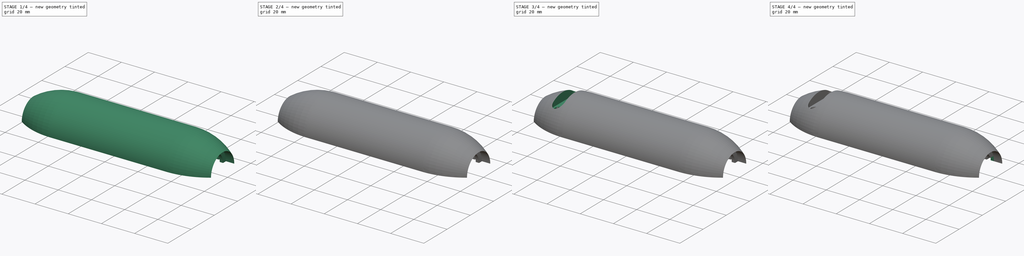
[diagram: build sequence overview — one tinted view per stage of 4, left to right]
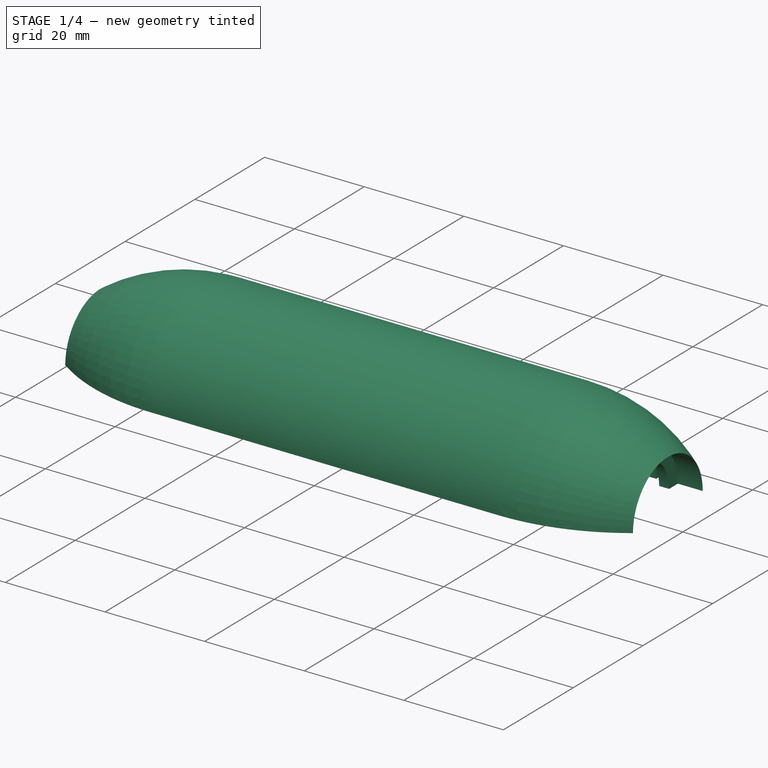
[diagram: stage 1 of 4 — iso view after this stage's code; geometry added in this stage tinted green]
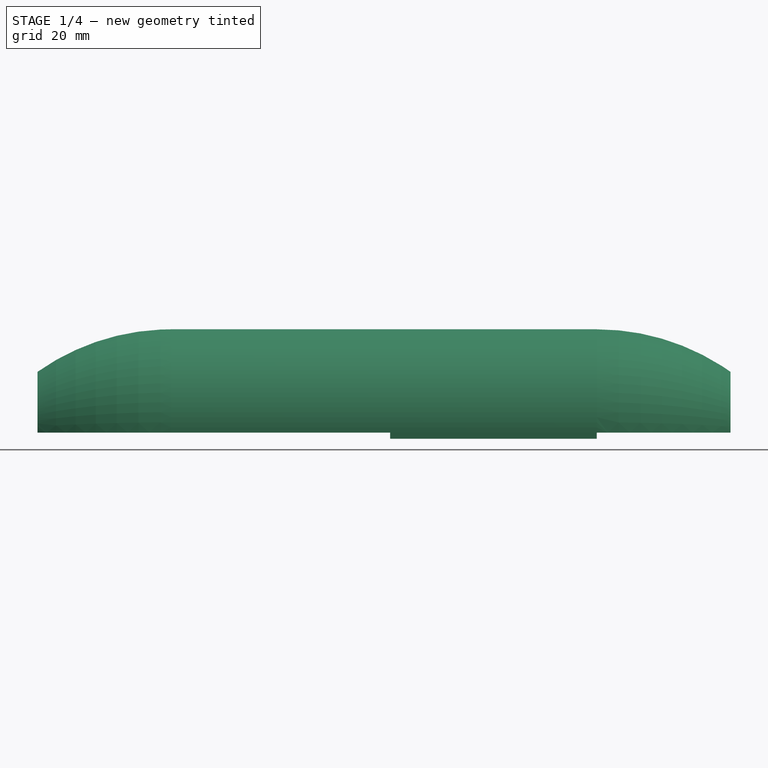
[diagram: stage 1 of 4 — front view after this stage's code; geometry added in this stage tinted green]
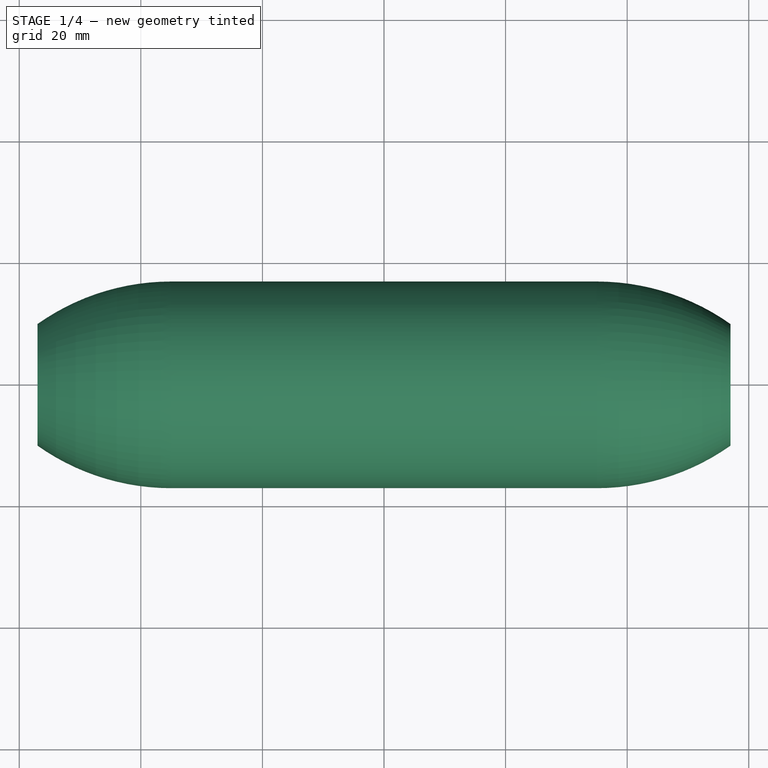
[diagram: stage 1 of 4 — top view after this stage's code; geometry added in this stage tinted green]
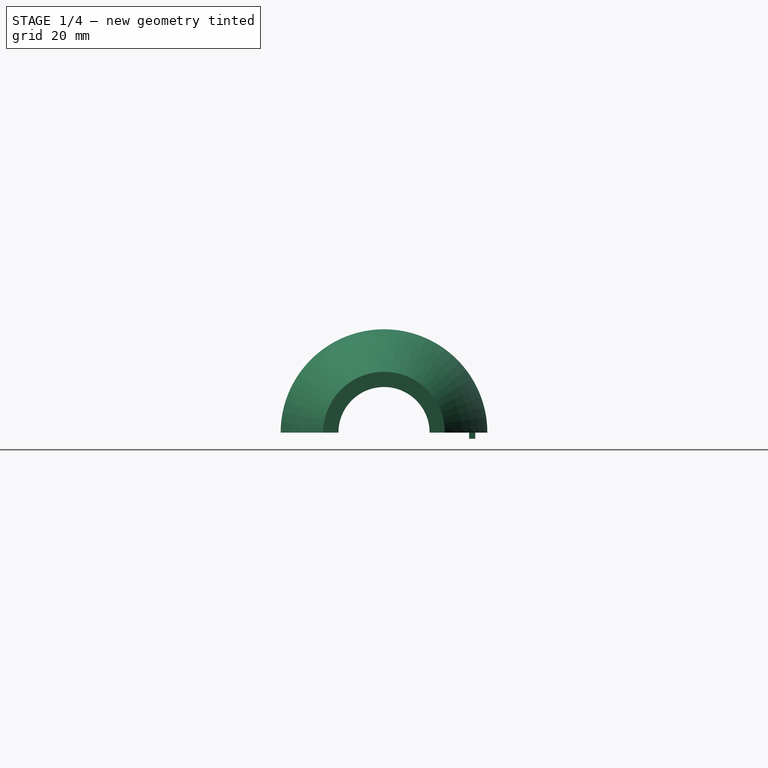
[diagram: stage 1 of 4 — right view after this stage's code; geometry added in this stage tinted green]
FCSTD DOCUMENT  (FreeCAD 0.19R24291 (Git))
Label: mri_cable_trap_cover
License: All rights reserved
LicenseURL: http://en.wikipedia.org/wiki/All_rights_reserved
objects: Sketcher::SketchObject×8, PartDesign::Pocket×5, PartDesign::Pad×2, PartDesign::Mirrored×2, PartDesign::Revolution×1, PartDesign::Body×1
note: 27 computed .brp shape members not serialized (recipe doc carries the construction recipe); baked Part::Feature solids carry a one-line shape summary decoded from their .brp

FEATURE [Sketcher::SketchObject] Sketch
  FullyConstrained = false
  MapMode = 5
  Support = -> [XY_Plane]
  sketch-geometry (20):
    g0: LineSegment StartX=-35 StartY=-17 StartZ=0 EndX=35 EndY=-17 EndZ=0
    g1: ArcOfCircle CenterX=35 CenterY=21.0714 CenterZ=0 NormalX=0 NormalY=0 NormalZ=1 AngleXU=0 Radius=38.0714 StartAngle=4.71239 EndAngle=5.32849
    g2: LineSegment StartX=57 StartY=-10 StartZ=0 EndX=52 EndY=-10 EndZ=0
    g3: LineSegment StartX=52 StartY=-10 StartZ=0 EndX=52 EndY=-7.5 EndZ=0
    g4: LineSegment StartX=52 StartY=-7.5 StartZ=0 EndX=50 EndY=-7.5 EndZ=0
    g5: LineSegment StartX=50 StartY=-7.5 StartZ=0 EndX=50 EndY=-11.7586 EndZ=0
    g6: LineSegment StartX=35 StartY=-14 StartZ=0 EndX=-35 EndY=-14 EndZ=0
    g7: ArcOfCircle CenterX=-35 CenterY=21.0714 CenterZ=0 NormalX=0 NormalY=0 NormalZ=1 AngleXU=0 Radius=36.0945 StartAngle=4.28381 EndAngle=4.34394
    g8: LineSegment StartX=-50 StartY=-11.7586 StartZ=0 EndX=-50 EndY=-7.5 EndZ=0
    g9: LineSegment StartX=-50 StartY=-7.5 StartZ=0 EndX=-52 EndY=-7.5 EndZ=0
    g10: LineSegment StartX=-52 StartY=-7.5 StartZ=0 EndX=-52 EndY=-10 EndZ=0
    g11: LineSegment StartX=-52 StartY=-10 StartZ=0 EndX=-57 EndY=-10 EndZ=0
    g12: ArcOfCircle CenterX=-35 CenterY=21.0714 CenterZ=0 NormalX=0 NormalY=0 NormalZ=1 AngleXU=0 Radius=38.0714 StartAngle=4.09628 EndAngle=4.71239
    g13: ArcOfCircle CenterX=35 CenterY=21.0714 CenterZ=0 NormalX=0 NormalY=0 NormalZ=1 AngleXU=0 Radius=36.0945 StartAngle=5.08083 EndAngle=5.14097
    g14: LineSegment StartX=35 StartY=-14 StartZ=0 EndX=35 EndY=-9.5 EndZ=0
    g15: LineSegment StartX=35 StartY=-9.5 StartZ=0 EndX=48 EndY=-9.5 EndZ=0
    g16: LineSegment StartX=48 StartY=-9.5 StartZ=0 EndX=48 EndY=-12.6007 EndZ=0
    g17: LineSegment StartX=-35 StartY=-14 StartZ=0 EndX=-35 EndY=-9.5 EndZ=0
    g18: LineSegment StartX=-35 StartY=-9.5 StartZ=0 EndX=-48 EndY=-9.5 EndZ=0
    g19: LineSegment StartX=-48 StartY=-9.5 StartZ=0 EndX=-48 EndY=-12.6007 EndZ=0
  constraints (54):
    c: Tangent(g0,g1) = -1.5708
    c: Coincident(g1,g2)
    c: Horizontal(g2)
    c: Coincident(g2,g3)
    c: Coincident(g3,g4)
    c: Coincident(g7,g8)
    c: Vertical(g8)
    c: Coincident(g8,g9)
    c: Horizontal(g9)
    c: Coincident(g9,g10)
    c: Vertical(g10)
    c: Coincident(g10,g11)
    c: Horizontal(g11)
    c: Coincident(g11,g12)
    c: Coincident(g12,g7)
    c: Vertical(g3)
    c: Vertical(g5)
    c: Horizontal(g4)
    c: Coincident(g5,g4)
    c: DistanceX(g0,g0) = 70
    c: Symmetric(g0,g0,g-2)
    c: Tangent(g12,g0) = -1.5708
    c: Symmetric(g1,g11,g-2)
    c: DistanceX(g11,g1) = 114
    c: Coincident(g13,g1)
    c: DistanceY(g0,g-1) = 17
    c: DistanceX(g11,g11) = 5
    c: DistanceX(g2,g2) = 5
    c: DistanceX(g4,g4) = 2
    c: DistanceX(g9,g9) = 2
    c: DistanceY(g1,g-1) = 10
    c: Horizontal(g4,g8)
    c: DistanceY(g0,g6) = 3
    c: Symmetric(g6,g6,g-2)
    c: Coincident(g6,g14)
    c: Vertical(g14)
    c: Coincident(g14,g15)
    c: Horizontal(g15)
    c: Coincident(g15,g16)
    c: Vertical(g16)
    c: Coincident(g6,g17)
    c: Vertical(g17)
    c: Coincident(g17,g18)
    c: Horizontal(g18)
    c: Coincident(g18,g19)
    c: Coincident(g19,g7)
    c: Vertical(g19)
    c: Horizontal(g14,g17)
    c: DistanceY(g0,g14) = 7.5
    c: DistanceX(g-1,g6) = 35
    c: DistanceX(g15,g15) = 13
    c: Coincident(g5,g13)
    c: Coincident(g13,g16)
    c: Symmetric(g7,g13,g-2)
FEATURE [PartDesign::Revolution] Revolution
  Angle = 180
  Axis = (1,0,0)
  Base = (0,0,0)
  Profile = -> Sketch
  ReferenceAxis = -> X_Axis
  Refine = true
  Reversed = true
FEATURE [Sketcher::SketchObject] Sketch001
  ExternalGeometry = -> [Revolution]
  FullyConstrained = false
  MapMode = 5
  Support = -> [XY_Plane]
  sketch-geometry (5):
    g0: LineSegment StartX=45 StartY=15.5186 StartZ=0 EndX=45 EndY=9.5 EndZ=0
    g1: LineSegment StartX=1 StartY=15 StartZ=0 EndX=35 EndY=15 EndZ=0
    g2: LineSegment StartX=35 StartY=15 StartZ=0 EndX=35 EndY=14 EndZ=0
    g3: LineSegment StartX=35 StartY=14 StartZ=0 EndX=1 EndY=14 EndZ=0
    g4: LineSegment StartX=1 StartY=14 StartZ=0 EndX=1 EndY=15 EndZ=0
  constraints (11):
    c: Coincident(g1,g2)
    c: Coincident(g2,g3)
    c: Coincident(g3,g4)
    c: Coincident(g4,g1)
    c: Horizontal(g1)
    c: Horizontal(g3)
    c: Vertical(g2)
    c: Vertical(g4)
    c: Coincident(g2,g-6)
    c: DistanceY(g4,g4) = 1
    c: DistanceX(g1,g1) = 34
FEATURE [PartDesign::Pad] Pad
  BaseFeature = -> Revolution
  Direction = (1,1,1)
  Length = 1
  Length2 = 100
  Profile = -> Sketch001
  Refine = true
  Reversed = true
  Type = 0
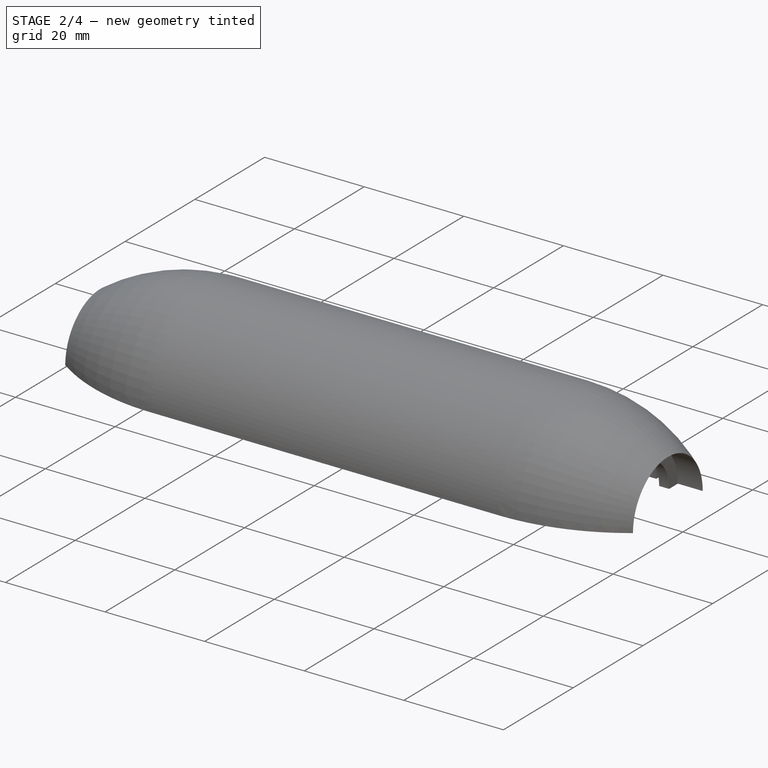
[diagram: stage 2 of 4 — iso view after this stage's code; geometry added in this stage tinted green]
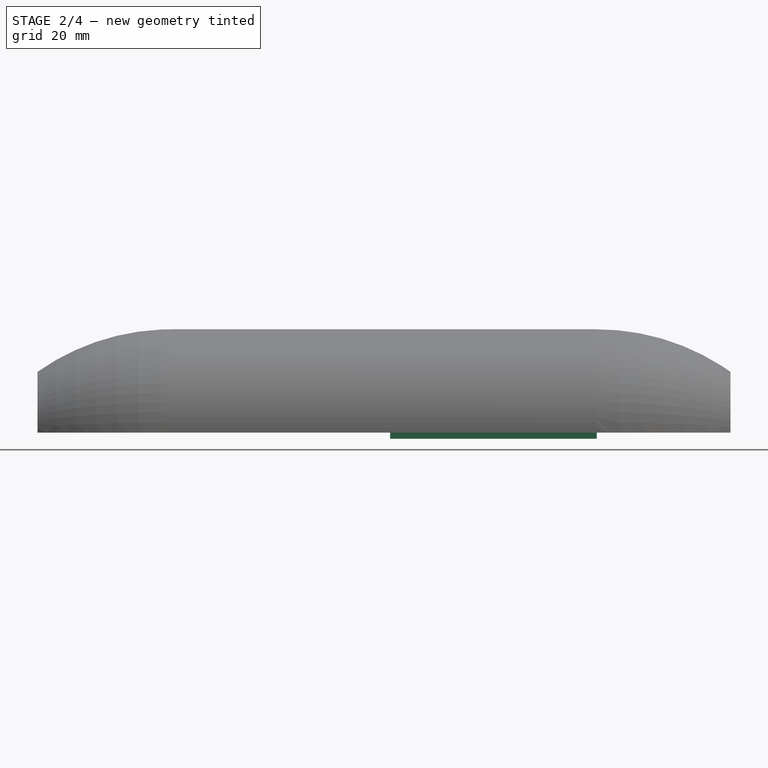
[diagram: stage 2 of 4 — front view after this stage's code; geometry added in this stage tinted green]
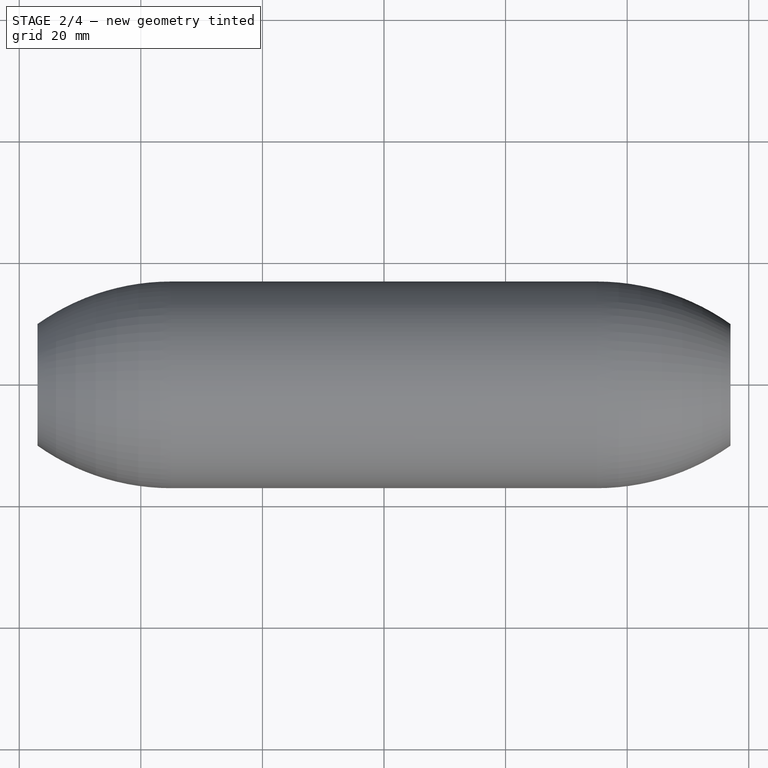
[diagram: stage 2 of 4 — top view after this stage's code; geometry added in this stage tinted green]
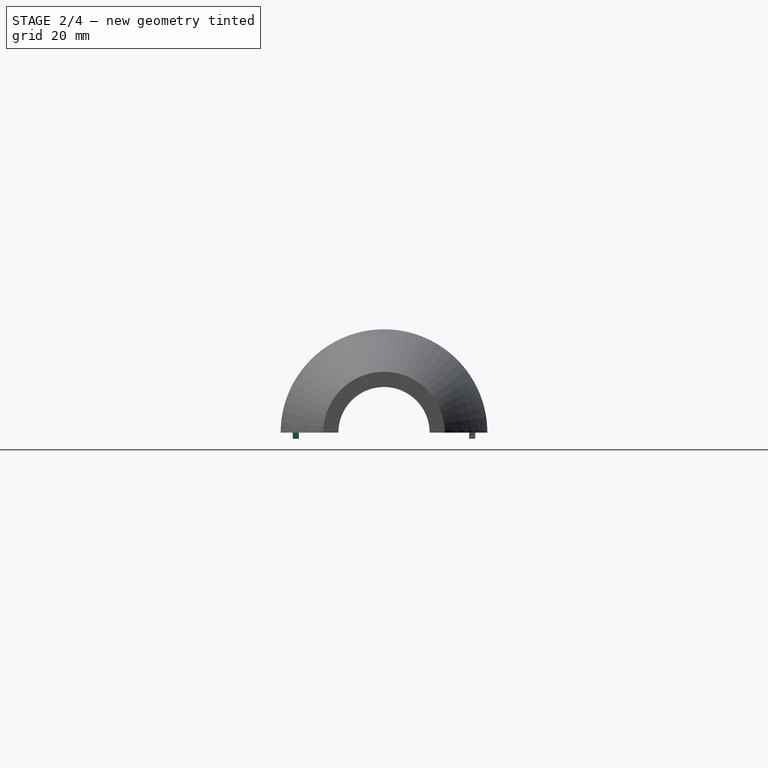
[diagram: stage 2 of 4 — right view after this stage's code; geometry added in this stage tinted green]
FEATURE [PartDesign::Mirrored] Mirrored
  BaseFeature = -> Pad
  MirrorPlane = -> XZ_Plane
  Originals = -> [Pad]
  Refine = true
FEATURE [Sketcher::SketchObject] Sketch002
  ExternalGeometry = -> [Mirrored]
  FullyConstrained = false
  MapMode = 5
  Support = -> [XY_Plane]
  sketch-geometry (6):
    g0: LineSegment StartX=52 StartY=-10 StartZ=0 EndX=52 EndY=-8.5 EndZ=0
    g1: LineSegment StartX=57 StartY=-8.5 StartZ=0 EndX=57 EndY=-10 EndZ=0
    g2: LineSegment StartX=-35 StartY=15.5 StartZ=0 EndX=1 EndY=15.5 EndZ=0
    g3: LineSegment StartX=1 StartY=15.5 StartZ=0 EndX=1 EndY=14 EndZ=0
    g4: LineSegment StartX=1 StartY=14 StartZ=0 EndX=-35 EndY=14 EndZ=0
    g5: LineSegment StartX=-35 StartY=14 StartZ=0 EndX=-35 EndY=15.5 EndZ=0
  constraints (11):
    c: Coincident(g2,g3)
    c: Coincident(g3,g4)
    c: Coincident(g4,g5)
    c: Coincident(g5,g2)
    c: Horizontal(g2)
    c: Horizontal(g4)
    c: Vertical(g3)
    c: Vertical(g5)
    c: Vertical(g4,g-5)
    c: Coincident(g3,g-5)
    c: DistanceY(g3,g3) = 1.5
FEATURE [PartDesign::Pocket] Pocket
  BaseFeature = -> Mirrored
  Length = 1
  Length2 = 100
  Profile = -> Sketch002
  Refine = true
  Reversed = true
  Type = 0
FEATURE [PartDesign::Mirrored] Mirrored001
  BaseFeature = -> Pocket
  MirrorPlane = -> XZ_Plane
  Originals = -> [Pocket]
  Refine = true
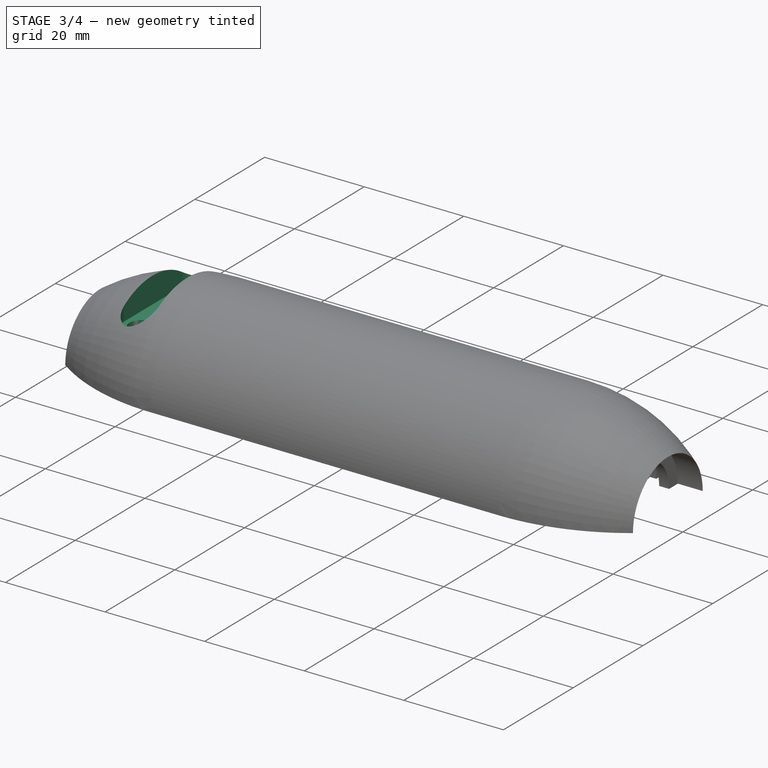
[diagram: stage 3 of 4 — iso view after this stage's code; geometry added in this stage tinted green]
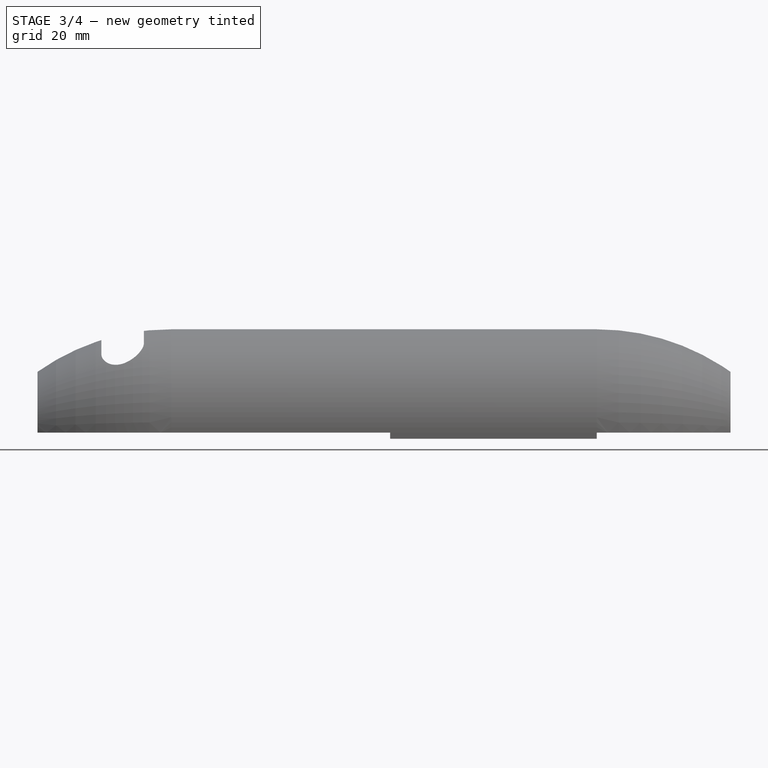
[diagram: stage 3 of 4 — front view after this stage's code; geometry added in this stage tinted green]
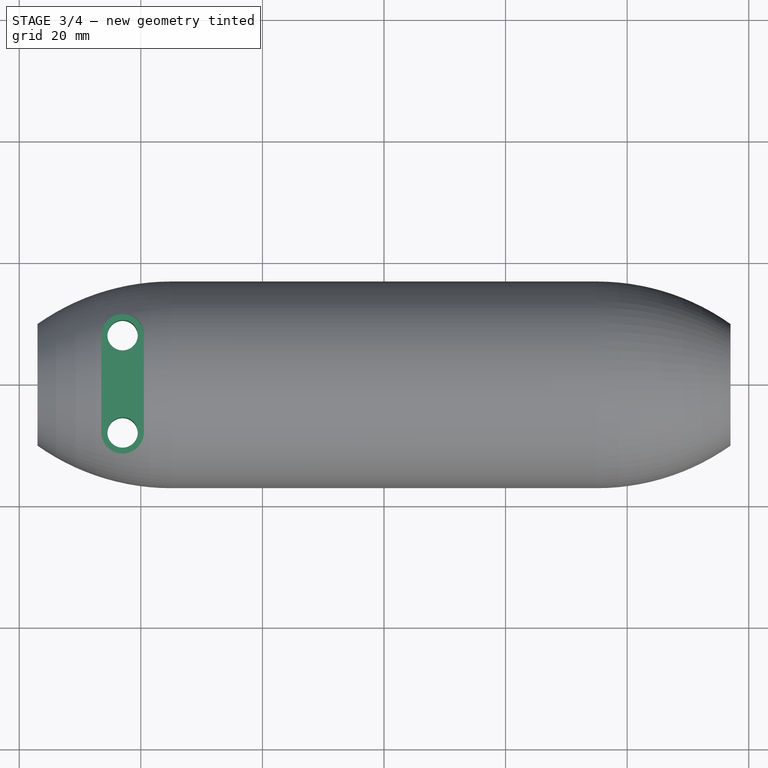
[diagram: stage 3 of 4 — top view after this stage's code; geometry added in this stage tinted green]
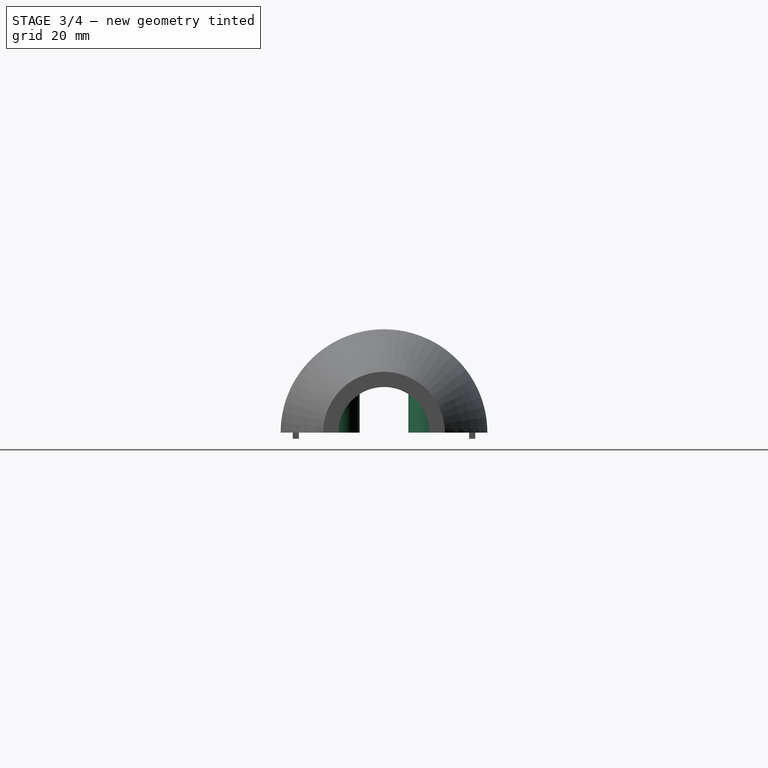
[diagram: stage 3 of 4 — right view after this stage's code; geometry added in this stage tinted green]
FEATURE [Sketcher::SketchObject] Sketch003
  ExternalGeometry = -> [Mirrored001]
  FullyConstrained = true
  MapMode = 5
  Support = -> [XY_Plane]
  sketch-geometry (4):
    g0: Circle CenterX=43 CenterY=-8 CenterZ=0 NormalX=0 NormalY=0 NormalZ=1 AngleXU=0 Radius=4
    g1: Circle CenterX=-43 CenterY=-8 CenterZ=0 NormalX=0 NormalY=0 NormalZ=1 AngleXU=0 Radius=4
    g2: Circle CenterX=-43 CenterY=8 CenterZ=0 NormalX=0 NormalY=0 NormalZ=1 AngleXU=0 Radius=4
    g3: Circle CenterX=43 CenterY=8 CenterZ=0 NormalX=0 NormalY=0 NormalZ=1 AngleXU=0 Radius=4
  constraints (12):
    c: Radius(g0) = 4
    c: DistanceX(g-1,g0) = 43
    c: DistanceY(g0,g-1) = 8
    c: Equal(g3,g0)
    c: Equal(g0,g1)
    c: Radius(g2) = 4
    c: Horizontal(g2,g3)
    c: Horizontal(g1,g0)
    c: Vertical(g1,g2)
    c: DistanceX(g2,g-1) = 43
    c: DistanceX(g-1,g3) = 43
    c: DistanceY(g-1,g3) = 8
FEATURE [PartDesign::Pad] Pad001
  BaseFeature = -> Mirrored001
  Direction = (1,1,1)
  Length = 8
  Length2 = 100
  Profile = -> Sketch003
  Refine = true
  Type = 0
FEATURE [Sketcher::SketchObject] Sketch005
  FullyConstrained = true
  MapMode = 5
  Support = -> [XY_Plane]
  sketch-geometry (2):
    g0: Circle CenterX=43 CenterY=8 CenterZ=0 NormalX=0 NormalY=0 NormalZ=1 AngleXU=0 Radius=1
    g1: Circle CenterX=43 CenterY=-8 CenterZ=0 NormalX=0 NormalY=0 NormalZ=1 AngleXU=0 Radius=1
  constraints (5):
    c: Equal(g1,g0)
    c: Symmetric(g0,g1,g-1)
    c: DistanceX(g-1,g1) = 43
    c: DistanceY(g1,g-1) = 8
    c: Radius(g0) = 1
FEATURE [Sketcher::SketchObject] Sketch006
  FullyConstrained = true
  MapMode = 5
  Support = -> [XY_Plane]
  sketch-geometry (2):
    g0: Circle CenterX=-43 CenterY=8 CenterZ=0 NormalX=0 NormalY=0 NormalZ=1 AngleXU=0 Radius=2.5
    g1: Circle CenterX=-43 CenterY=-8 CenterZ=0 NormalX=0 NormalY=0 NormalZ=1 AngleXU=0 Radius=2.5
  constraints (5):
    c: Equal(g1,g0)
    c: Symmetric(g0,g1,g-1)
    c: DistanceX(g0,g-1) = 43
    c: DistanceY(g-1,g0) = 8
    c: Radius(g0) = 2.5
FEATURE [PartDesign::Pocket] Pocket002
  BaseFeature = -> Pad001
  Length = 10
  Length2 = 100
  Profile = -> Sketch006
  Refine = true
  Reversed = true
  Type = 0
FEATURE [Sketcher::SketchObject] Sketch007
  AttachmentOffset = pos=(0,0,20) rot=(0,0,1;0rad)
  FullyConstrained = true
  MapMode = 5
  Placement = pos=(0,0,20) rot=(0,0,1;0rad)
  Support = -> [XY_Plane]
  sketch-geometry (4):
    g0: ArcOfCircle CenterX=-43 CenterY=8 CenterZ=0 NormalX=0 NormalY=0 NormalZ=1 AngleXU=0 Radius=3.5 StartAngle=1e-16 EndAngle=3.14159
    g1: ArcOfCircle CenterX=-43 CenterY=-8 CenterZ=0 NormalX=0 NormalY=0 NormalZ=1 AngleXU=0 Radius=3.5 StartAngle=3.14159 EndAngle=6.28319
    g2: LineSegment StartX=-46.5 StartY=8 StartZ=0 EndX=-46.5 EndY=-8 EndZ=0
    g3: LineSegment StartX=-39.5 StartY=8 StartZ=0 EndX=-39.5 EndY=-8 EndZ=0
  constraints (9):
    c: Tangent(g0,g3) = 1.5708
    c: Tangent(g0,g2) = -1.5708
    c: Tangent(g2,g1) = -1.5708
    c: Tangent(g3,g1) = 1.5708
    c: Vertical(g2)
    c: Symmetric(g0,g1,g-1)
    c: DistanceY(g1,g0) = 16
    c: DistanceX(g0,g-1) = 43
    c: Radius(g0) = 3.5
FEATURE [PartDesign::Pocket] Pocket003
  BaseFeature = -> Pocket002
  Length = 10
  Length2 = 100
  Profile = -> Sketch007
  Refine = true
  Type = 0
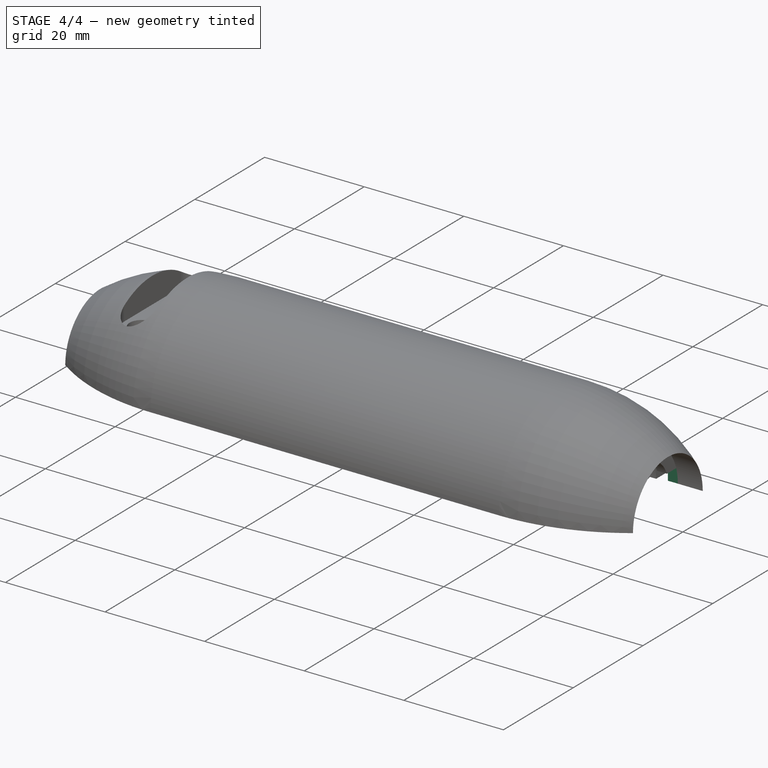
[diagram: stage 4 of 4 — iso view after this stage's code; geometry added in this stage tinted green]
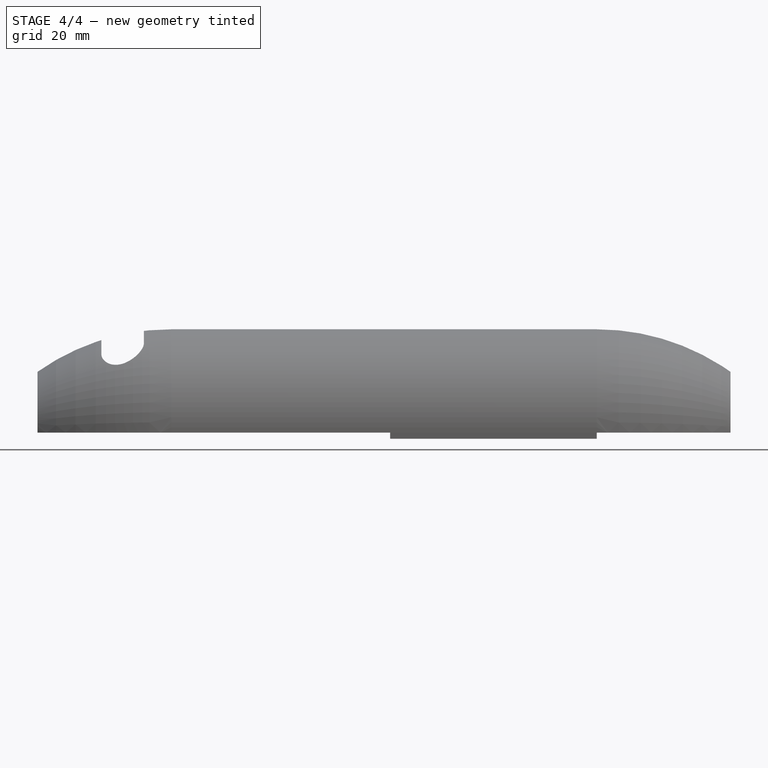
[diagram: stage 4 of 4 — front view after this stage's code; geometry added in this stage tinted green]
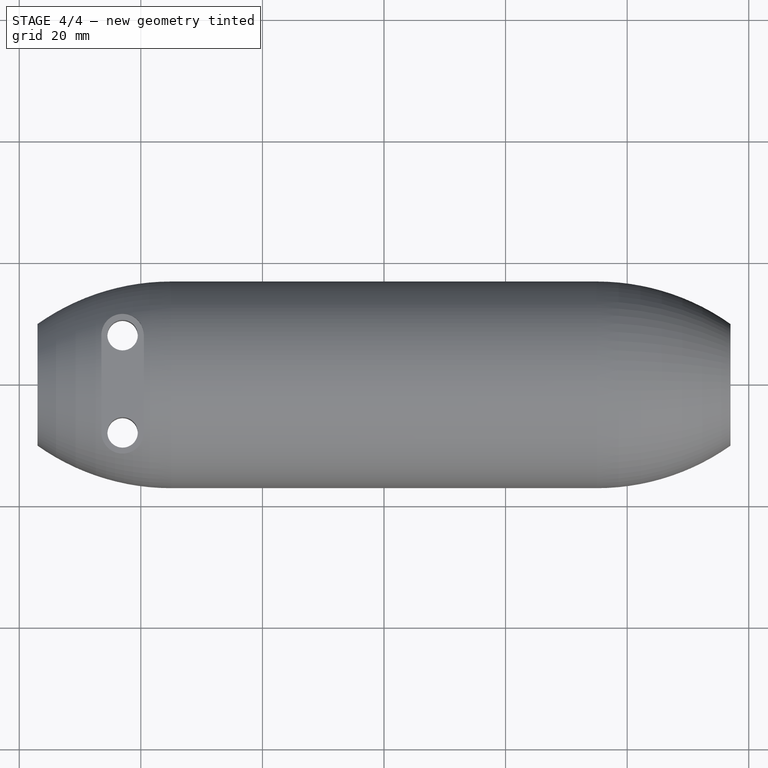
[diagram: stage 4 of 4 — top view after this stage's code; geometry added in this stage tinted green]
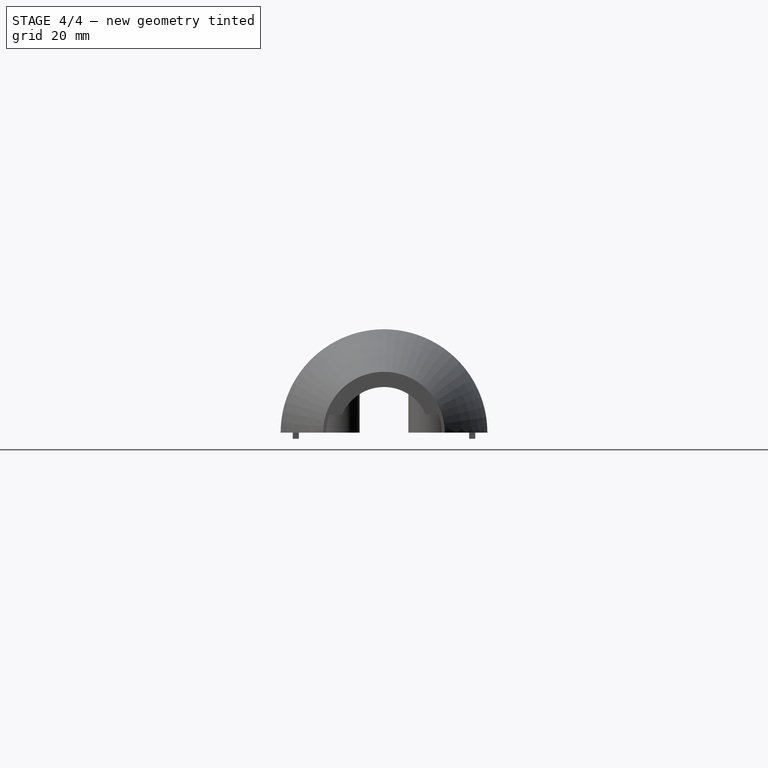
[diagram: stage 4 of 4 — right view after this stage's code; geometry added in this stage tinted green]
FEATURE [PartDesign::Pocket] Pocket005
  BaseFeature = -> Pocket003
  Length = 10
  Length2 = 100
  Profile = -> Sketch005
  Refine = true
  Reversed = true
  Type = 0
FEATURE [Sketcher::SketchObject] Sketch008
  ExternalGeometry = -> [Pocket005]
  FullyConstrained = true
  MapMode = 5
  Support = -> [XY_Plane]
  sketch-geometry (8):
    g0: LineSegment StartX=50 StartY=10 StartZ=0 EndX=52 EndY=10 EndZ=0
    g1: LineSegment StartX=52 StartY=10 StartZ=0 EndX=52 EndY=-10 EndZ=0
    g2: LineSegment StartX=52 StartY=-10 StartZ=0 EndX=50 EndY=-10 EndZ=0
    g3: LineSegment StartX=50 StartY=-10 StartZ=0 EndX=50 EndY=10 EndZ=0
    g4: LineSegment StartX=-52 StartY=10 StartZ=0 EndX=-50 EndY=10 EndZ=0
    g5: LineSegment StartX=-50 StartY=10 StartZ=0 EndX=-50 EndY=-10 EndZ=0
    g6: LineSegment StartX=-50 StartY=-10 StartZ=0 EndX=-52 EndY=-10 EndZ=0
    g7: LineSegment StartX=-52 StartY=-10 StartZ=0 EndX=-52 EndY=10 EndZ=0
  constraints (20):
    c: Coincident(g0,g1)
    c: Coincident(g1,g2)
    c: Coincident(g2,g3)
    c: Coincident(g3,g0)
    c: Horizontal(g0)
    c: Horizontal(g2)
    c: Vertical(g3)
    c: Coincident(g-3,g0)
    c: Coincident(g1,g-4)
    c: DistanceX(g-5,g0) = 0
    c: Coincident(g4,g5)
    c: Coincident(g5,g6)
    c: Coincident(g6,g7)
    c: Coincident(g7,g4)
    c: Horizontal(g4)
    c: Horizontal(g6)
    c: Vertical(g5)
    c: Coincident(g4,g-7)
    c: PointOnObject(g5,g-6)
    c: Coincident(g6,g-7)
FEATURE [PartDesign::Pocket] Pocket006
  BaseFeature = -> Pocket005
  Length = 3
  Length2 = 100
  Profile = -> Sketch008
  Refine = true
  Reversed = true
  Type = 0
FEATURE [PartDesign::Body] Body
  Group = -> [Sketch,Revolution,Sketch001,Pad,Mirrored,Sketch002,Pocket,Mirrored001,Sketch003,Pad001,Sketch005,Sketch006,Sketch008,Pocket002,Sketch007,Pocket003,Pocket005,Pocket006]
  Origin = -> Origin
  Tip = -> Pad001
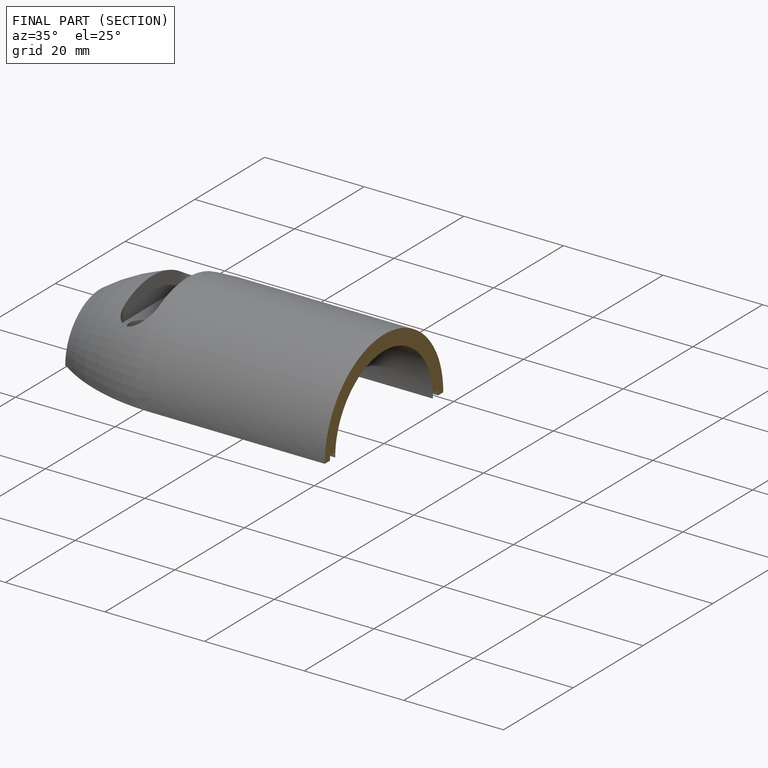
[diagram: finished part — half-section view (interior)]
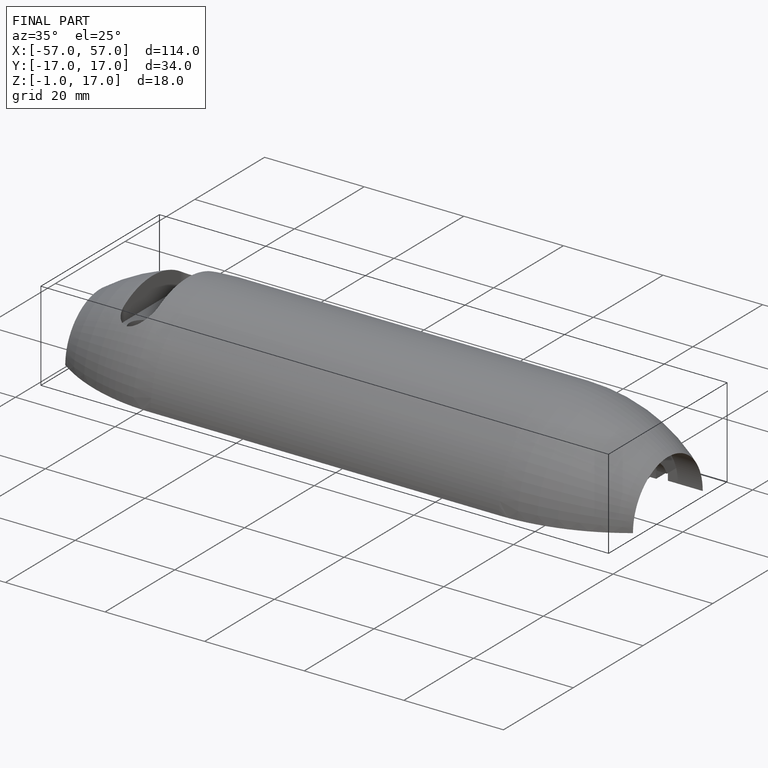
[diagram: finished part — iso view with bounding-box wireframe]
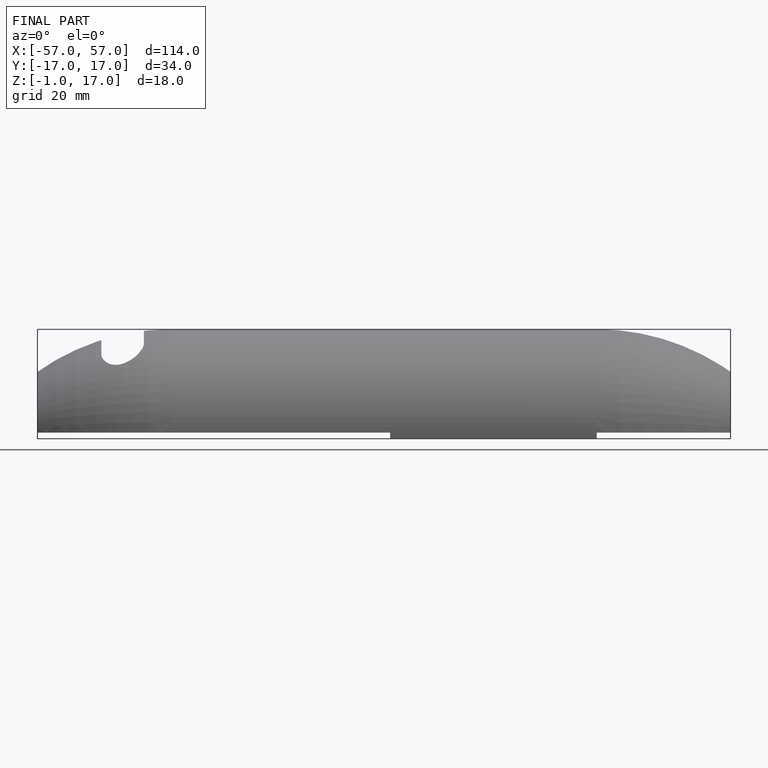
[diagram: finished part — front view with bounding-box wireframe]
